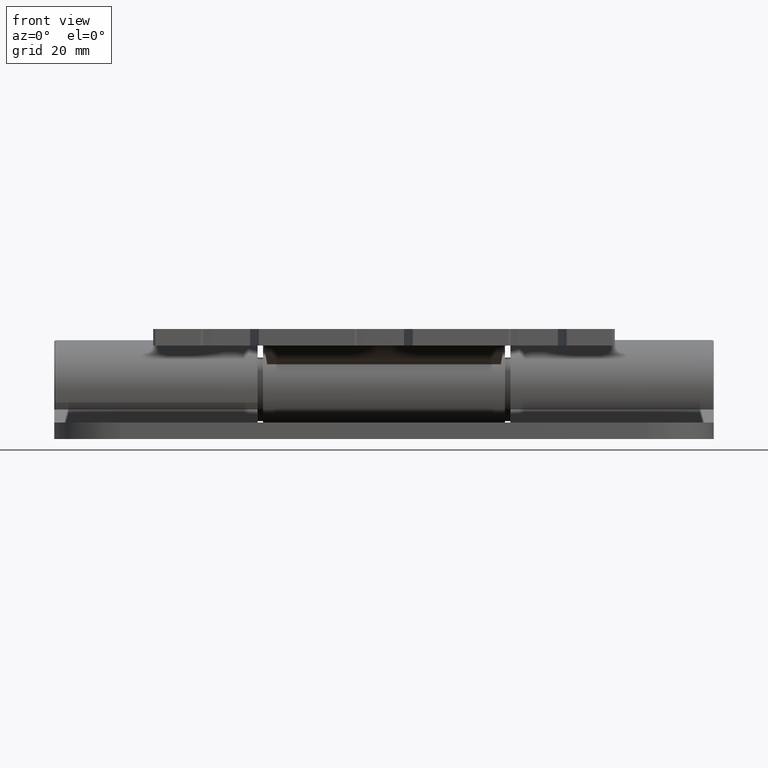
[diagram: clean part render]
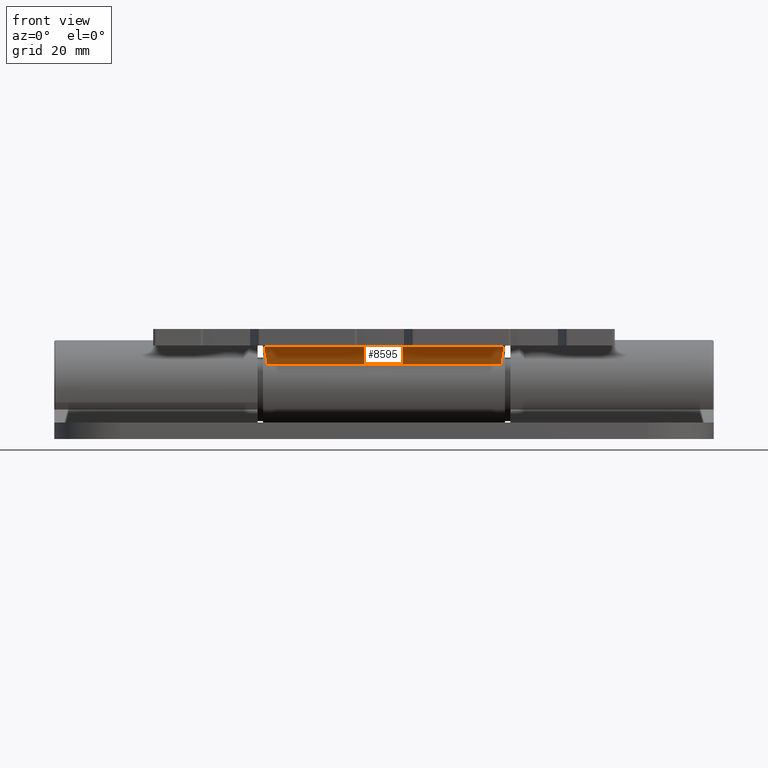
[diagram: same view with one face highlighted and labeled with its STEP entity id]
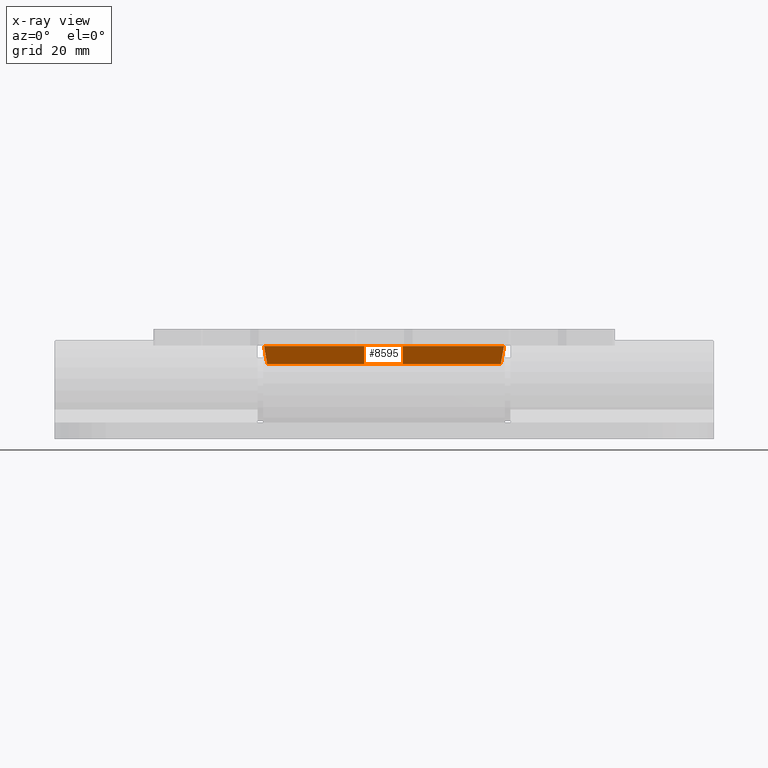
[diagram: x-ray of the same camera — body ghosted, the highlighted face saturated]
A machine part, front view. The second image highlights one B-rep face of the part: STEP entity #8595.
The next image is the same camera in x-ray: the body ghosted, the highlighted face saturated — about 0% of this face is hidden behind the body in this view.
In plain terms, the highlighted planar face has unit normal (-0, -0.6382, -0.7698).
Its self-contained STEP definition (entity closure, byte-faithful):
#219 = VECTOR ( 'NONE', #8632, 1000.000000000000100 ) ;
#489 = LINE ( 'NONE', #9442, #8375 ) ;
#547 = DIRECTION ( 'NONE',  ( 3.328006943901139200E-031, 9.860761315262649300E-031, -1.000000000000000000 ) ) ;
#661 = CARTESIAN_POINT ( 'NONE',  ( -12.92696158610931100, -8.768485371908669300, -22.00000000000000400 ) ) ;
#859 = CARTESIAN_POINT ( 'NONE',  ( -12.92696158610930400, -8.768485371908665700, 21.99999999999999600 ) ) ;
#1874 = CARTESIAN_POINT ( 'NONE',  ( -11.86119163198737600, -7.884922739070609600, 21.84143495603961300 ) ) ;
#2092 = AXIS2_PLACEMENT_3D ( 'NONE', #4491, #7914, #4646 ) ;
#2190 = PLANE ( 'NONE',  #2092 ) ;
#2206 = VERTEX_POINT ( 'NONE', #12051 ) ;
#2796 = LINE ( 'NONE', #8239, #5234 ) ;
#3489 = VERTEX_POINT ( 'NONE', #7899 ) ;
#4491 = CARTESIAN_POINT ( 'NONE',  ( -11.86119163198737600, -7.884922739070598900, 41.99999999999999300 ) ) ;
#4646 = DIRECTION ( 'NONE',  ( -0.7698454781412144000, -0.6382303187608098200, 9.121204216617947200E-031 ) ) ;
#4782 = LINE ( 'NONE', #661, #219 ) ;
#5018 = EDGE_LOOP ( 'NONE', ( #6028, #12131, #6651, #7742 ) ) ;
#5234 = VECTOR ( 'NONE', #11547, 1000.000000000000000 ) ;
#6028 = ORIENTED_EDGE ( 'NONE', *, *, #8391, .F. ) ;
#6651 = ORIENTED_EDGE ( 'NONE', *, *, #8506, .F. ) ;
#7742 = ORIENTED_EDGE ( 'NONE', *, *, #13753, .T. ) ;
#7899 = CARTESIAN_POINT ( 'NONE',  ( -7.885954781412140200, -4.589304651635446300, 21.25000000000000000 ) ) ;
#7914 = DIRECTION ( 'NONE',  ( -0.6382303187608099300, 0.7698454781412145100, 3.451266460341925300E-031 ) ) ;
#8239 = CARTESIAN_POINT ( 'NONE',  ( -7.885954781412150900, -4.589304651635446300, 41.99999999999999300 ) ) ;
#8375 = VECTOR ( 'NONE', #547, 1000.000000000000000 ) ;
#8391 = EDGE_CURVE ( 'NONE', #2206, #10947, #4782, .T. ) ;
#8506 = EDGE_CURVE ( 'NONE', #3489, #9413, #13989, .T. ) ;
#8595 = ADVANCED_FACE ( 'NONE', ( #13638 ), #2190, .T. ) ;
#8632 = DIRECTION ( 'NONE',  ( 0.7648448903344443600, 0.6340846468818084300, 0.1137934722120042000 ) ) ;
#8662 = CARTESIAN_POINT ( 'NONE',  ( -7.885954781412147300, -4.589304651635446300, -21.25000000000000000 ) ) ;
#9413 = VERTEX_POINT ( 'NONE', #1874 ) ;
#9442 = CARTESIAN_POINT ( 'NONE',  ( -11.86119163198737600, -7.884922739070598900, 41.99999999999999300 ) ) ;
#9793 = DIRECTION ( 'NONE',  ( -0.7648448903344443600, -0.6340846468818084300, 0.1137934722120042000 ) ) ;
#10947 = VERTEX_POINT ( 'NONE', #8662 ) ;
#11547 = DIRECTION ( 'NONE',  ( 3.328006943901139200E-031, 9.860761315262649300E-031, -1.000000000000000000 ) ) ;
#11739 = VECTOR ( 'NONE', #9793, 1000.000000000000100 ) ;
#12051 = CARTESIAN_POINT ( 'NONE',  ( -11.86119163198739000, -7.884922739070609600, -21.84143495603961000 ) ) ;
#12131 = ORIENTED_EDGE ( 'NONE', *, *, #13947, .F. ) ;
#13638 = FACE_OUTER_BOUND ( 'NONE', #5018, .T. ) ;
#13753 = EDGE_CURVE ( 'NONE', #3489, #10947, #2796, .T. ) ;
#13947 = EDGE_CURVE ( 'NONE', #9413, #2206, #489, .T. ) ;
#13989 = LINE ( 'NONE', #859, #11739 ) ;